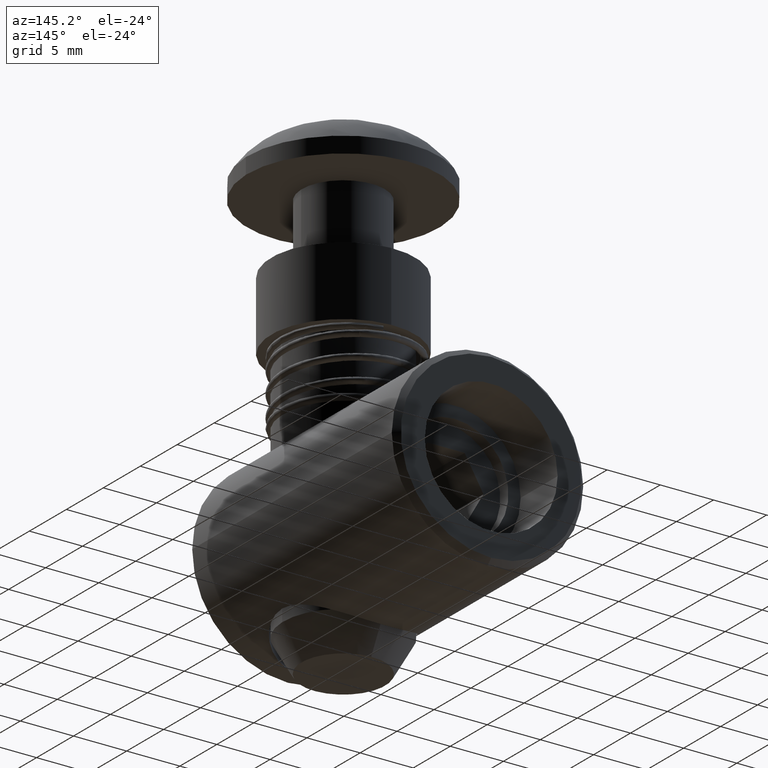
[diagram: clean part render]
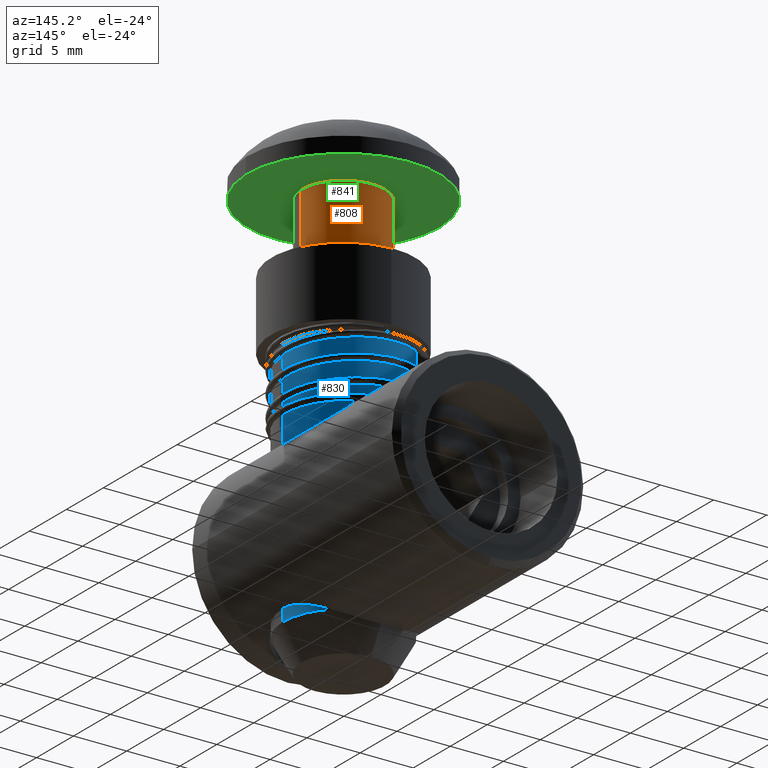
[diagram: same view with three faces highlighted in distinct colors, each labeled with its STEP entity id]
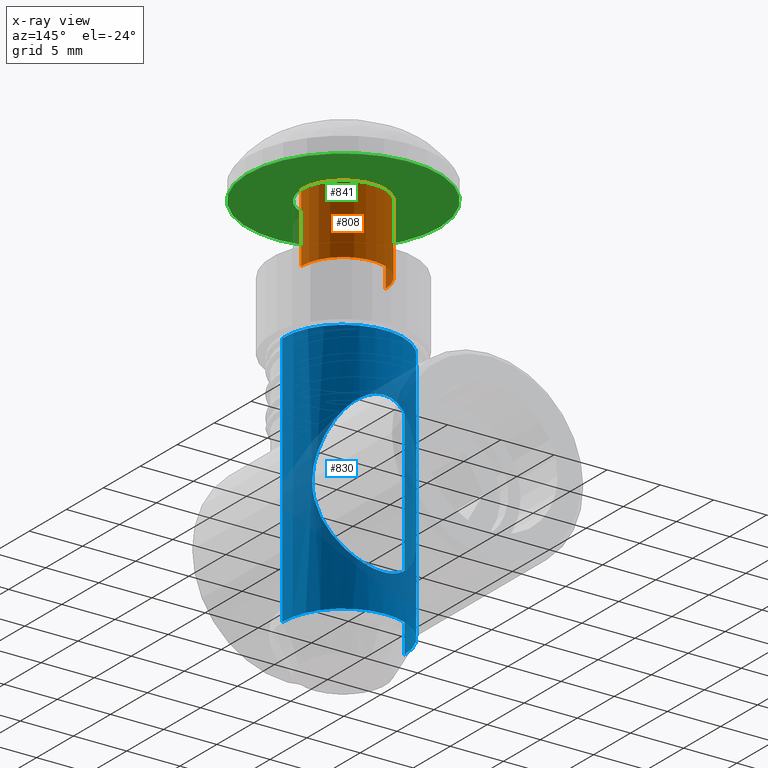
[diagram: x-ray of the same camera — body ghosted, the three highlighted faces saturated]
A machine part, auxiliary view with three faces highlighted in distinct colors.
The next image is the same camera in x-ray (body ghosted, the three faces saturated) — at least one of them is partly hidden behind the body in this view.
Their STEP definitions:

[orange] entity #808 — the highlighted cylindrical surface (partial cylindrical patch) has radius 3.9 mm, axis along (-0, 0, -1).
#9 = EDGE_CURVE ( 'NONE', #2917, #1492, #884, .T. ) ;
#10 = EDGE_CURVE ( 'NONE', #1492, #1493, #883, .T. ) ;
#11 = EDGE_CURVE ( 'NONE', #1496, #1493, #887, .T. ) ;
#12 = EDGE_CURVE ( 'NONE', #2917, #1496, #886, .T. ) ;
#808 = ADVANCED_FACE ( 'NONE', ( #1263 ), #1264, .T. ) ;
#883 = LINE ( 'NONE', #995, #885 ) ;
#884 = CIRCLE ( 'NONE', #1516, 3.899999999999999900 ) ;
#885 = VECTOR ( 'NONE', #996, 1000.000000000000000 ) ;
#886 = LINE ( 'NONE', #1000, #888 ) ;
#887 = CIRCLE ( 'NONE', #1517, 3.899999999999999900 ) ;
#888 = VECTOR ( 'NONE', #1001, 1000.000000000000000 ) ;
#992 = CARTESIAN_POINT ( 'NONE',  ( 0.0000000000000000000, -5.542828134810192100E-040, -40.00000000000000000 ) ) ;
#993 = DIRECTION ( 'NONE',  ( 0.0000000000000000000, -8.896017825522089600E-016, 1.000000000000000000 ) ) ;
#994 = DIRECTION ( 'NONE',  ( 0.0000000000000000000, -1.000000000000000000, -1.779203565104417500E-015 ) ) ;
#995 = CARTESIAN_POINT ( 'NONE',  ( 4.776122516674677300E-016, 3.899999999999999900, -39.99999999999999300 ) ) ;
#996 = DIRECTION ( 'NONE',  ( 0.0000000000000000000, -8.896017825522089600E-016, 1.000000000000000000 ) ) ;
#997 = CARTESIAN_POINT ( 'NONE',  ( 0.0000000000000000000, -5.782411586589357200E-015, -33.50000000000000000 ) ) ;
#998 = DIRECTION ( 'NONE',  ( 0.0000000000000000000, -8.896017825522089600E-016, 1.000000000000000000 ) ) ;
#999 = DIRECTION ( 'NONE',  ( 0.0000000000000000000, -1.000000000000000000, -1.779203565104417500E-015 ) ) ;
#1000 = CARTESIAN_POINT ( 'NONE',  ( 0.0000000000000000000, -3.899999999999999900, -40.00000000000000700 ) ) ;
#1001 = DIRECTION ( 'NONE',  ( 0.0000000000000000000, -8.896017825522089600E-016, 1.000000000000000000 ) ) ;
#1263 = FACE_OUTER_BOUND ( 'NONE', #1456, .T. ) ;
#1264 = CYLINDRICAL_SURFACE ( 'NONE', #2812, 3.899999999999999900 ) ;
#1383 = ORIENTED_EDGE ( 'NONE', *, *, #10, .T. ) ;
#1384 = ORIENTED_EDGE ( 'NONE', *, *, #9, .T. ) ;
#1400 = ORIENTED_EDGE ( 'NONE', *, *, #12, .F. ) ;
#1423 = ORIENTED_EDGE ( 'NONE', *, *, #11, .F. ) ;
#1456 = EDGE_LOOP ( 'NONE', ( #1384, #1383, #1423, #1400 ) ) ;
#1492 = VERTEX_POINT ( 'NONE', #2144 ) ;
#1493 = VERTEX_POINT ( 'NONE', #2145 ) ;
#1496 = VERTEX_POINT ( 'NONE', #2148 ) ;
#1516 = AXIS2_PLACEMENT_3D ( 'NONE', #992, #993, #994 ) ;
#1517 = AXIS2_PLACEMENT_3D ( 'NONE', #997, #998, #999 ) ;
#1875 = CARTESIAN_POINT ( 'NONE',  ( 0.0000000000000000000, 0.0000000000000000000, -40.00000000000000000 ) ) ;
#1876 = DIRECTION ( 'NONE',  ( 0.0000000000000000000, -8.896017825522089600E-016, 1.000000000000000000 ) ) ;
#1877 = DIRECTION ( 'NONE',  ( 0.0000000000000000000, -1.000000000000000000, -1.779203565104417500E-015 ) ) ;
#2144 = CARTESIAN_POINT ( 'NONE',  ( 4.776122516674680200E-016, 3.899999999999999900, -40.00000000000000000 ) ) ;
#2145 = CARTESIAN_POINT ( 'NONE',  ( 4.776122516674677300E-016, 3.899999999999994100, -33.49999999999999300 ) ) ;
#2148 = CARTESIAN_POINT ( 'NONE',  ( 0.0000000000000000000, -3.900000000000005200, -33.50000000000000700 ) ) ;
#2327 = CARTESIAN_POINT ( 'NONE',  ( 0.0000000000000000000, -3.899999999999999900, -40.00000000000000700 ) ) ;
#2812 = AXIS2_PLACEMENT_3D ( 'NONE', #1875, #1876, #1877 ) ;
#2917 = VERTEX_POINT ( 'NONE', #2327 ) ;

[blue] entity #830 — the highlighted cylindrical surface (partial cylindrical patch) has radius 5.65 mm, axis along (-0, 0, -1).
#19 = EDGE_CURVE ( 'NONE', #1536, #1535, #1433, .T. ) ;
#22 = EDGE_CURVE ( 'NONE', #1535, #1536, #1436, .T. ) ;
#23 = EDGE_CURVE ( 'NONE', #1529, #1531, #903, .T. ) ;
#26 = EDGE_CURVE ( 'NONE', #1526, #1527, #906, .T. ) ;
#28 = EDGE_CURVE ( 'NONE', #1529, #2905, #907, .T. ) ;
#29 = EDGE_CURVE ( 'NONE', #1531, #1527, #910, .T. ) ;
#38 = EDGE_CURVE ( 'NONE', #2905, #1526, #918, .T. ) ;
#830 = ADVANCED_FACE ( 'NONE', ( #1947, #1948 ), #1949, .T. ) ;
#903 = CIRCLE ( 'NONE', #1521, 5.649999999999999500 ) ;
#906 = CIRCLE ( 'NONE', #1523, 5.649999999999998600 ) ;
#907 = LINE ( 'NONE', #1131, #909 ) ;
#909 = VECTOR ( 'NONE', #1132, 1000.000000000000000 ) ;
#910 = LINE ( 'NONE', #1133, #911 ) ;
#911 = VECTOR ( 'NONE', #1134, 1000.000000000000000 ) ;
#918 = CIRCLE ( 'NONE', #3127, 5.649999999999998600 ) ;
#1016 = CARTESIAN_POINT ( 'NONE',  ( 2.961595553952068200, 4.811595553952067000, -14.00000000000000000 ) ) ;
#1017 = CARTESIAN_POINT ( 'NONE',  ( 2.961595553952068600, 4.811595553952067000, -13.57299345797078300 ) ) ;
#1018 = CARTESIAN_POINT ( 'NONE',  ( 2.997142720252163000, 4.790178999840883900, -13.15152765621599200 ) ) ;
#1019 = CARTESIAN_POINT ( 'NONE',  ( 3.096222318175060600, 4.726251388833850900, -12.52677397019109600 ) ) ;
#1020 = CARTESIAN_POINT ( 'NONE',  ( 3.136806548275296700, 4.699597401254456100, -12.31975918867283700 ) ) ;
#1021 = CARTESIAN_POINT ( 'NONE',  ( 3.231299053865970700, 4.635135109105808800, -11.90803729403234700 ) ) ;
#1022 = CARTESIAN_POINT ( 'NONE',  ( 3.285456279482796400, 4.597130787598807400, -11.70257226377728400 ) ) ;
#1023 = CARTESIAN_POINT ( 'NONE',  ( 3.462060352552689400, 4.467435045527793100, -11.09905063211158400 ) ) ;
#1024 = CARTESIAN_POINT ( 'NONE',  ( 3.598793229557414500, 4.360038424798156100, -10.71125160011082800 ) ) ;
#1025 = CARTESIAN_POINT ( 'NONE',  ( 3.893504253076139700, 4.099008710176486000, -9.959898250783748400 ) ) ;
#1026 = CARTESIAN_POINT ( 'NONE',  ( 4.051580190083130100, 3.945490218921813100, -9.596341147894870400 ) ) ;
#1027 = CARTESIAN_POINT ( 'NONE',  ( 4.377052309168864700, 3.581006588528047100, -8.892845421627233900 ) ) ;
#1028 = CARTESIAN_POINT ( 'NONE',  ( 4.543421484188627300, 3.370983763048713800, -8.555476015043618400 ) ) ;
#1029 = CARTESIAN_POINT ( 'NONE',  ( 4.783853616867359500, 3.009679742234423500, -8.085401507374948300 ) ) ;
#1030 = CARTESIAN_POINT ( 'NONE',  ( 4.862738604434448500, 2.881189409971274300, -7.934209947499080200 ) ) ;
#1031 = CARTESIAN_POINT ( 'NONE',  ( 5.016199920489348200, 2.604845006688572400, -7.644397302777438300 ) ) ;
#1032 = CARTESIAN_POINT ( 'NONE',  ( 5.090965808080320600, 2.456409822999941400, -7.505452612885776800 ) ) ;
#1033 = CARTESIAN_POINT ( 'NONE',  ( 5.230512854392106400, 2.143272581267367600, -7.248990182449590600 ) ) ;
#1034 = CARTESIAN_POINT ( 'NONE',  ( 5.295732359979550300, 1.977927992112557400, -7.130638550942740600 ) ) ;
#1035 = CARTESIAN_POINT ( 'NONE',  ( 5.414174662451125100, 1.625943755173973500, -6.917389229180723300 ) ) ;
#1036 = CARTESIAN_POINT ( 'NONE',  ( 5.467715969055869400, 1.437510763749879200, -6.821936342586424100 ) ) ;
#1037 = CARTESIAN_POINT ( 'NONE',  ( 5.555539670495345900, 1.048014352820518400, -6.666123004197199700 ) ) ;
#1038 = CARTESIAN_POINT ( 'NONE',  ( 5.590290272015355600, 0.8461203779732382500, -6.604908106642250600 ) ) ;
#1039 = CARTESIAN_POINT ( 'NONE',  ( 5.637914835761543800, 0.4256539957653157100, -6.521158396055735600 ) ) ;
#1040 = CARTESIAN_POINT ( 'NONE',  ( 5.650279333229625500, 0.2093871887656843500, -6.499510235541494700 ) ) ;
#1041 = CARTESIAN_POINT ( 'NONE',  ( 5.649710957974379600, -0.2241999769964501400, -6.500506787217527300 ) ) ;
#1042 = CARTESIAN_POINT ( 'NONE',  ( 5.637015855639352100, -0.4360075775476766600, -6.522736377706752200 ) ) ;
#1043 = CARTESIAN_POINT ( 'NONE',  ( 5.589491487180038300, -0.8506675491343933500, -6.606315818820237800 ) ) ;
#1044 = CARTESIAN_POINT ( 'NONE',  ( 5.554126853144023100, -1.055582440020999200, -6.668617054438343800 ) ) ;
#1045 = CARTESIAN_POINT ( 'NONE',  ( 5.465485867587468700, -1.446044127852916400, -6.825905939850065900 ) ) ;
#1046 = CARTESIAN_POINT ( 'NONE',  ( 5.412735195149362100, -1.630735581008902600, -6.919964069783057800 ) ) ;
#1047 = CARTESIAN_POINT ( 'NONE',  ( 5.293942756250958200, -1.982718064051229600, -7.133877952108221600 ) ) ;
#1048 = CARTESIAN_POINT ( 'NONE',  ( 5.227478910596945000, -2.150635851525980700, -7.254521756849417400 ) ) ;
#1049 = CARTESIAN_POINT ( 'NONE',  ( 5.017923522683738600, -2.619164910217751000, -7.639782791013683300 ) ) ;
#1050 = CARTESIAN_POINT ( 'NONE',  ( 4.863463728486417300, -2.890286902401052200, -7.929680959516752600 ) ) ;
#1051 = CARTESIAN_POINT ( 'NONE',  ( 4.541085093384189100, -3.374253101226699000, -8.560117549295633000 ) ) ;
#1052 = CARTESIAN_POINT ( 'NONE',  ( 4.375412474941105000, -3.582855895821849900, -8.896377739688826800 ) ) ;
#1053 = CARTESIAN_POINT ( 'NONE',  ( 4.052952318350746100, -3.943940694441405300, -9.593387476250237400 ) ) ;
#1054 = CARTESIAN_POINT ( 'NONE',  ( 3.895008272447442200, -4.097636755852960300, -9.956179619690216100 ) ) ;
#1055 = CARTESIAN_POINT ( 'NONE',  ( 3.598559805660513300, -4.360284824462244300, -10.71173139691113900 ) ) ;
#1056 = CARTESIAN_POINT ( 'NONE',  ( 3.460165757375947200, -4.468854685819116500, -11.10520062619261600 ) ) ;
#1057 = CARTESIAN_POINT ( 'NONE',  ( 3.227042934659731400, -4.640000341524475000, -11.90251888261512600 ) ) ;
#1058 = CARTESIAN_POINT ( 'NONE',  ( 3.131216053990888900, -4.703642284774068600, -12.30914813438212000 ) ) ;
#1059 = CARTESIAN_POINT ( 'NONE',  ( 3.031474981557628700, -4.768042115602737500, -12.93357994724312500 ) ) ;
#1060 = CARTESIAN_POINT ( 'NONE',  ( 3.005577181772033600, -4.784290064652418900, -13.14414854261466200 ) ) ;
#1061 = CARTESIAN_POINT ( 'NONE',  ( 2.970558604431047000, -4.806111442316047400, -13.57062669565032900 ) ) ;
#1062 = CARTESIAN_POINT ( 'NONE',  ( 2.961595553952074900, -4.811595553952072300, -13.78668706657359700 ) ) ;
#1063 = CARTESIAN_POINT ( 'NONE',  ( 2.961595553952073100, -4.811595553952072300, -14.00000000000000000 ) ) ;
#1069 = CARTESIAN_POINT ( 'NONE',  ( 2.961595553952073100, -4.811595553952072300, -14.00000000000000000 ) ) ;
#1070 = CARTESIAN_POINT ( 'NONE',  ( 2.961595553952074000, -4.811595553952073200, -14.42662576578586800 ) ) ;
#1071 = CARTESIAN_POINT ( 'NONE',  ( 2.997078802006793600, -4.790216761668517600, -14.84772069900645000 ) ) ;
#1072 = CARTESIAN_POINT ( 'NONE',  ( 3.095989327412678600, -4.726403450494777800, -15.47193049212208400 ) ) ;
#1073 = CARTESIAN_POINT ( 'NONE',  ( 3.136505226320098800, -4.699797326167100700, -15.67876603055470500 ) ) ;
#1074 = CARTESIAN_POINT ( 'NONE',  ( 3.230842301969248300, -4.635452293097919200, -16.09013311924566000 ) ) ;
#1075 = CARTESIAN_POINT ( 'NONE',  ( 3.284913352810812100, -4.597516927993552800, -16.29542801124765100 ) ) ;
#1076 = CARTESIAN_POINT ( 'NONE',  ( 3.461256950923921000, -4.468050008038067000, -16.89849022646966100 ) ) ;
#1077 = CARTESIAN_POINT ( 'NONE',  ( 3.597800368187682500, -4.360844132901545900, -17.28600234678741600 ) ) ;
#1078 = CARTESIAN_POINT ( 'NONE',  ( 3.892132346448012600, -4.100296920776145300, -18.03681720771781400 ) ) ;
#1079 = CARTESIAN_POINT ( 'NONE',  ( 4.050018185721151900, -3.947069132747502300, -18.40012256091255700 ) ) ;
#1080 = CARTESIAN_POINT ( 'NONE',  ( 4.375131863581301200, -3.583325720561249600, -19.10316198030582400 ) ) ;
#1081 = CARTESIAN_POINT ( 'NONE',  ( 4.541374860744172200, -3.373699886898911400, -19.44041301103148100 ) ) ;
#1082 = CARTESIAN_POINT ( 'NONE',  ( 4.781660451024691800, -3.013151584184167000, -19.91036427643346900 ) ) ;
#1083 = CARTESIAN_POINT ( 'NONE',  ( 4.860505967569056700, -2.884938509347774200, -20.06152931948607000 ) ) ;
#1084 = CARTESIAN_POINT ( 'NONE',  ( 5.013915365086083000, -2.609222331509110300, -20.35133139717541100 ) ) ;
#1085 = CARTESIAN_POINT ( 'NONE',  ( 5.088688431768558100, -2.461104285276898700, -20.49032887671128100 ) ) ;
#1086 = CARTESIAN_POINT ( 'NONE',  ( 5.228307277706877100, -2.148624506166855400, -20.74698841905476600 ) ) ;
#1087 = CARTESIAN_POINT ( 'NONE',  ( 5.293583336326130400, -1.983638995538906400, -20.86547007926808600 ) ) ;
#1088 = CARTESIAN_POINT ( 'NONE',  ( 5.412199673729120700, -1.632465281388456400, -21.07907630959605800 ) ) ;
#1089 = CARTESIAN_POINT ( 'NONE',  ( 5.465876328589356300, -1.444448144834217900, -21.17478811582053700 ) ) ;
#1090 = CARTESIAN_POINT ( 'NONE',  ( 5.554081445131315900, -1.055657985995706700, -21.33130116402006100 ) ) ;
#1091 = CARTESIAN_POINT ( 'NONE',  ( 5.589056206897270200, -0.8541404205369591600, -21.39291826957504800 ) ) ;
#1092 = CARTESIAN_POINT ( 'NONE',  ( 5.637226013098755000, -0.4344974327825715800, -21.47763361641653600 ) ) ;
#1093 = CARTESIAN_POINT ( 'NONE',  ( 5.649927738117694900, -0.2185765540630030800, -21.49987330082980800 ) ) ;
#1094 = CARTESIAN_POINT ( 'NONE',  ( 5.650071639015492600, 0.2148246492621311800, -21.50012560707703500 ) ) ;
#1095 = CARTESIAN_POINT ( 'NONE',  ( 5.637686869573799200, 0.4273767464117052600, -21.47844037393497300 ) ) ;
#1096 = CARTESIAN_POINT ( 'NONE',  ( 5.590716268126220400, 0.8426480475543067800, -21.39584136551057700 ) ) ;
#1097 = CARTESIAN_POINT ( 'NONE',  ( 5.555610129722425400, 1.047822620125052500, -21.33400315121660600 ) ) ;
#1098 = CARTESIAN_POINT ( 'NONE',  ( 5.467315682952047100, 1.439164820187985600, -21.17735233189528500 ) ) ;
#1099 = CARTESIAN_POINT ( 'NONE',  ( 5.414696045982258200, 1.624248299006287600, -21.08354473799353500 ) ) ;
#1100 = CARTESIAN_POINT ( 'NONE',  ( 5.296109300899637200, 1.976952725819479700, -20.87004483331439200 ) ) ;
#1101 = CARTESIAN_POINT ( 'NONE',  ( 5.229701932557940600, 2.145250546396932500, -20.74953205622952600 ) ) ;
#1102 = CARTESIAN_POINT ( 'NONE',  ( 5.020203236218734800, 2.614878258719772800, -20.36447310648037500 ) ) ;
#1103 = CARTESIAN_POINT ( 'NONE',  ( 4.865701397634720300, 2.886563403950423100, -20.07458412399521600 ) ) ;
#1104 = CARTESIAN_POINT ( 'NONE',  ( 4.543160284466200200, 3.371497146019749400, -19.44405002912209600 ) ) ;
#1105 = CARTESIAN_POINT ( 'NONE',  ( 4.377306732311523300, 3.580566878120747400, -19.10755956162699600 ) ) ;
#1106 = CARTESIAN_POINT ( 'NONE',  ( 4.054510151429830100, 3.942362341209593200, -18.41013537262980300 ) ) ;
#1107 = CARTESIAN_POINT ( 'NONE',  ( 3.896383663924169100, 4.096343299500803800, -18.04710859154797800 ) ) ;
#1108 = CARTESIAN_POINT ( 'NONE',  ( 3.599564876072679700, 4.359468635832137700, -17.29104568759732200 ) ) ;
#1109 = CARTESIAN_POINT ( 'NONE',  ( 3.460968086250796500, 4.468240973733986500, -16.89726003754046600 ) ) ;
#1110 = CARTESIAN_POINT ( 'NONE',  ( 3.227488754412501500, 4.639697601519152700, -16.09928781470111000 ) ) ;
#1111 = CARTESIAN_POINT ( 'NONE',  ( 3.131505819331684900, 4.703451647649100800, -15.69231992758884600 ) ) ;
#1112 = CARTESIAN_POINT ( 'NONE',  ( 3.031597127836459300, 4.767965014454700800, -15.06735707108733600 ) ) ;
#1113 = CARTESIAN_POINT ( 'NONE',  ( 3.005654639331991200, 4.784241559595393800, -14.85660756638487500 ) ) ;
#1114 = CARTESIAN_POINT ( 'NONE',  ( 2.970574902440726200, 4.806101524155201900, -14.42975850943962100 ) ) ;
#1115 = CARTESIAN_POINT ( 'NONE',  ( 2.961595553952067700, 4.811595553952066100, -14.21350322043603700 ) ) ;
#1116 = CARTESIAN_POINT ( 'NONE',  ( 2.961595553952068200, 4.811595553952067000, -14.00000000000000000 ) ) ;
#1117 = CARTESIAN_POINT ( 'NONE',  ( 0.0000000000000000000, -2.184816563463291800E-040, -27.00000000000000000 ) ) ;
#1118 = DIRECTION ( 'NONE',  ( 0.0000000000000000000, -3.070307037127092200E-016, 1.000000000000000000 ) ) ;
#1119 = DIRECTION ( 'NONE',  ( 0.0000000000000000000, -1.000000000000000000, 0.0000000000000000000 ) ) ;
#1125 = CARTESIAN_POINT ( 'NONE',  ( 0.0000000000000000000, 0.0000000000000000000, -2.999999999999999100 ) ) ;
#1126 = DIRECTION ( 'NONE',  ( 0.0000000000000000000, 0.0000000000000000000, 1.000000000000000000 ) ) ;
#1127 = DIRECTION ( 'NONE',  ( 1.000000000000000000, 0.0000000000000000000, -1.535153518563546600E-016 ) ) ;
#1131 = CARTESIAN_POINT ( 'NONE',  ( 0.0000000000000000000, -5.649999999999999500, -27.00000000000000000 ) ) ;
#1132 = DIRECTION ( 'NONE',  ( 0.0000000000000000000, -3.070307037127092200E-016, 1.000000000000000000 ) ) ;
#1133 = CARTESIAN_POINT ( 'NONE',  ( 6.919254415182545300E-016, 5.649999999999999500, -27.00000000000000000 ) ) ;
#1134 = DIRECTION ( 'NONE',  ( 0.0000000000000000000, -3.070307037127092200E-016, 1.000000000000000000 ) ) ;
#1168 = CARTESIAN_POINT ( 'NONE',  ( 0.0000000000000000000, 0.0000000000000000000, -2.999999999999999100 ) ) ;
#1169 = DIRECTION ( 'NONE',  ( 0.0000000000000000000, 0.0000000000000000000, 1.000000000000000000 ) ) ;
#1170 = DIRECTION ( 'NONE',  ( 1.000000000000000000, 0.0000000000000000000, -1.535153518563546600E-016 ) ) ;
#1397 = ORIENTED_EDGE ( 'NONE', *, *, #23, .T. ) ;
#1420 = ORIENTED_EDGE ( 'NONE', *, *, #19, .F. ) ;
#1422 = ORIENTED_EDGE ( 'NONE', *, *, #22, .F. ) ;
#1433 = B_SPLINE_CURVE_WITH_KNOTS ( 'NONE', 3,
 ( #1016, #1017, #1018, #1019, #1020, #1021, #1022, #1023, #1024, #1025, #1026, #1027, #1028, #1029, #1030, #1031, #1032, #1033, #1034, #1035, #1036, #1037, #1038, #1039, #1040, #1041, #1042, #1043, #1044, #1045, #1046, #1047, #1048, #1049, #1050, #1051, #1052, #1053, #1054, #1055, #1056, #1057, #1058, #1059, #1060, #1061, #1062, #1063 ),
 .UNSPECIFIED., .F., .F.,
 ( 4, 2, 2, 2, 2, 2, 2, 2, 2, 2, 2, 2, 2, 2, 2, 2, 2, 2, 2, 2, 2, 2, 2, 4 ),
 ( 0.01021815512896254500, 0.01149565521469545300, 0.01213440525756190700, 0.01277315530042836100, 0.01405065538616126500, 0.01532815547189417300, 0.01660565555762708000, 0.01724440560049353400, 0.01788315564335998800, 0.01852190568622644500, 0.01916065572909289900, 0.01979940577195935700, 0.02043815581482581100, 0.02107690585769226800, 0.02171565590055872500, 0.02235440594342517900, 0.02299315598629163300, 0.02427065607202454800, 0.02554815615775746200, 0.02682565624349037400, 0.02810315632922328100, 0.02938065641495619600, 0.03001940645782265300, 0.03065815650068910700 ),
 .UNSPECIFIED. ) ;
#1436 = B_SPLINE_CURVE_WITH_KNOTS ( 'NONE', 3,
 ( #1069, #1070, #1071, #1072, #1073, #1074, #1075, #1076, #1077, #1078, #1079, #1080, #1081, #1082, #1083, #1084, #1085, #1086, #1087, #1088, #1089, #1090, #1091, #1092, #1093, #1094, #1095, #1096, #1097, #1098, #1099, #1100, #1101, #1102, #1103, #1104, #1105, #1106, #1107, #1108, #1109, #1110, #1111, #1112, #1113, #1114, #1115, #1116 ),
 .UNSPECIFIED., .F., .F.,
 ( 4, 2, 2, 2, 2, 2, 2, 2, 2, 2, 2, 2, 2, 2, 2, 2, 2, 2, 2, 2, 2, 2, 2, 4 ),
 ( 0.03065815650068910700, 0.03193565628378440500, 0.03257440617533205500, 0.03321315606687970400, 0.03449065584997500900, 0.03576815563307031400, 0.03704565541616561300, 0.03768440530771326200, 0.03832315519926091100, 0.03896190509080856000, 0.03960065498235620200, 0.04023940487390385200, 0.04087815476545149400, 0.04151690465699914300, 0.04215565454854679200, 0.04279440444009443400, 0.04343315433164208300, 0.04471065411473737500, 0.04598815389783265900, 0.04726565368092795100, 0.04854315346402323500, 0.04982065324711852600, 0.05045940313866616900, 0.05109815303021381100 ),
 .UNSPECIFIED. ) ;
#1453 = EDGE_LOOP ( 'NONE', ( #1397, #1485, #1484, #1483, #1482 ) ) ;
#1454 = EDGE_LOOP ( 'NONE', ( #1420, #1422 ) ) ;
#1482 = ORIENTED_EDGE ( 'NONE', *, *, #28, .F. ) ;
#1483 = ORIENTED_EDGE ( 'NONE', *, *, #38, .F. ) ;
#1484 = ORIENTED_EDGE ( 'NONE', *, *, #26, .F. ) ;
#1485 = ORIENTED_EDGE ( 'NONE', *, *, #29, .T. ) ;
#1521 = AXIS2_PLACEMENT_3D ( 'NONE', #1117, #1118, #1119 ) ;
#1523 = AXIS2_PLACEMENT_3D ( 'NONE', #1125, #1126, #1127 ) ;
#1526 = VERTEX_POINT ( 'NONE', #2292 ) ;
#1527 = VERTEX_POINT ( 'NONE', #2293 ) ;
#1529 = VERTEX_POINT ( 'NONE', #2295 ) ;
#1531 = VERTEX_POINT ( 'NONE', #2297 ) ;
#1535 = VERTEX_POINT ( 'NONE', #2301 ) ;
#1536 = VERTEX_POINT ( 'NONE', #2302 ) ;
#1947 = FACE_BOUND ( 'NONE', #1454, .T. ) ;
#1948 = FACE_OUTER_BOUND ( 'NONE', #1453, .T. ) ;
#1949 = CYLINDRICAL_SURFACE ( 'NONE', #2834, 5.649999999999999500 ) ;
#2015 = CARTESIAN_POINT ( 'NONE',  ( 0.0000000000000000000, 0.0000000000000000000, -27.00000000000000000 ) ) ;
#2016 = DIRECTION ( 'NONE',  ( 0.0000000000000000000, -3.070307037127092200E-016, 1.000000000000000000 ) ) ;
#2017 = DIRECTION ( 'NONE',  ( 0.0000000000000000000, -1.000000000000000000, 0.0000000000000000000 ) ) ;
#2292 = CARTESIAN_POINT ( 'NONE',  ( 5.649999999999998600, 6.919254415182544400E-016, -2.999999999999999100 ) ) ;
#2293 = CARTESIAN_POINT ( 'NONE',  ( 6.919254415182550300E-016, 5.649999999999998600, -2.999999999999999100 ) ) ;
#2295 = CARTESIAN_POINT ( 'NONE',  ( 0.0000000000000000000, -5.649999999999999500, -27.00000000000000000 ) ) ;
#2297 = CARTESIAN_POINT ( 'NONE',  ( 6.919254415182550300E-016, 5.649999999999999500, -27.00000000000000000 ) ) ;
#2301 = CARTESIAN_POINT ( 'NONE',  ( 2.961595553952073100, -4.811595553952072300, -14.00000000000000000 ) ) ;
#2302 = CARTESIAN_POINT ( 'NONE',  ( 2.961595553952068200, 4.811595553952067000, -14.00000000000000000 ) ) ;
#2315 = CARTESIAN_POINT ( 'NONE',  ( 0.0000000000000000000, -5.649999999999999500, -2.999999999999999100 ) ) ;
#2834 = AXIS2_PLACEMENT_3D ( 'NONE', #2015, #2016, #2017 ) ;
#2905 = VERTEX_POINT ( 'NONE', #2315 ) ;
#3127 = AXIS2_PLACEMENT_3D ( 'NONE', #1168, #1169, #1170 ) ;

[green] entity #841 — the highlighted planar face has unit normal (0, 0, 1).
#6 = EDGE_CURVE ( 'NONE', #1487, #1495, #880, .T. ) ;
#9 = EDGE_CURVE ( 'NONE', #2917, #1492, #884, .T. ) ;
#841 = ADVANCED_FACE ( 'NONE', ( #1969, #1970 ), #2051, .F. ) ;
#880 = CIRCLE ( 'NONE', #1514, 9.000000000000001800 ) ;
#884 = CIRCLE ( 'NONE', #1516, 3.899999999999999900 ) ;
#984 = CARTESIAN_POINT ( 'NONE',  ( 0.0000000000000000000, -5.782411586589361600E-016, -40.00000000000000000 ) ) ;
#985 = DIRECTION ( 'NONE',  ( 0.0000000000000000000, -3.854941057726237600E-016, 1.000000000000000000 ) ) ;
#986 = DIRECTION ( 'NONE',  ( 0.0000000000000000000, -1.000000000000000000, -7.709882115452474200E-016 ) ) ;
#992 = CARTESIAN_POINT ( 'NONE',  ( 0.0000000000000000000, -5.542828134810192100E-040, -40.00000000000000000 ) ) ;
#993 = DIRECTION ( 'NONE',  ( 0.0000000000000000000, -8.896017825522089600E-016, 1.000000000000000000 ) ) ;
#994 = DIRECTION ( 'NONE',  ( 0.0000000000000000000, -1.000000000000000000, -1.779203565104417500E-015 ) ) ;
#1293 = EDGE_LOOP ( 'NONE', ( #1382, #1322 ) ) ;
#1294 = EDGE_LOOP ( 'NONE', ( #3095, #3096 ) ) ;
#1322 = ORIENTED_EDGE ( 'NONE', *, *, #3185, .T. ) ;
#1382 = ORIENTED_EDGE ( 'NONE', *, *, #6, .T. ) ;
#1487 = VERTEX_POINT ( 'NONE', #2139 ) ;
#1492 = VERTEX_POINT ( 'NONE', #2144 ) ;
#1495 = VERTEX_POINT ( 'NONE', #2147 ) ;
#1514 = AXIS2_PLACEMENT_3D ( 'NONE', #984, #985, #986 ) ;
#1516 = AXIS2_PLACEMENT_3D ( 'NONE', #992, #993, #994 ) ;
#1969 = FACE_BOUND ( 'NONE', #1294, .T. ) ;
#1970 = FACE_OUTER_BOUND ( 'NONE', #1293, .T. ) ;
#2051 = PLANE ( 'NONE',  #2845 ) ;
#2052 = CARTESIAN_POINT ( 'NONE',  ( 9.108000000000000500, -9.108000000000000500, -40.00000000000000000 ) ) ;
#2053 = DIRECTION ( 'NONE',  ( 0.0000000000000000000, 0.0000000000000000000, -1.000000000000000000 ) ) ;
#2054 = DIRECTION ( 'NONE',  ( -1.000000000000000000, 0.0000000000000000000, 0.0000000000000000000 ) ) ;
#2139 = CARTESIAN_POINT ( 'NONE',  ( 0.0000000000000000000, -9.000000000000001800, -40.00000000000000700 ) ) ;
#2144 = CARTESIAN_POINT ( 'NONE',  ( 4.776122516674680200E-016, 3.899999999999999900, -40.00000000000000000 ) ) ;
#2147 = CARTESIAN_POINT ( 'NONE',  ( 1.102182119232617900E-015, 9.000000000000001800, -39.99999999999999300 ) ) ;
#2240 = CIRCLE ( 'NONE', #2885, 3.899999999999999900 ) ;
#2246 = CIRCLE ( 'NONE', #2891, 9.000000000000001800 ) ;
#2327 = CARTESIAN_POINT ( 'NONE',  ( 0.0000000000000000000, -3.899999999999999900, -40.00000000000000700 ) ) ;
#2591 = CARTESIAN_POINT ( 'NONE',  ( 0.0000000000000000000, -5.542828134810192100E-040, -40.00000000000000000 ) ) ;
#2592 = DIRECTION ( 'NONE',  ( 0.0000000000000000000, -8.896017825522089600E-016, 1.000000000000000000 ) ) ;
#2593 = DIRECTION ( 'NONE',  ( 0.0000000000000000000, -1.000000000000000000, -1.779203565104417500E-015 ) ) ;
#2609 = CARTESIAN_POINT ( 'NONE',  ( 0.0000000000000000000, -5.782411586589361600E-016, -40.00000000000000000 ) ) ;
#2610 = DIRECTION ( 'NONE',  ( 0.0000000000000000000, -3.854941057726237600E-016, 1.000000000000000000 ) ) ;
#2611 = DIRECTION ( 'NONE',  ( 0.0000000000000000000, -1.000000000000000000, -7.709882115452474200E-016 ) ) ;
#2845 = AXIS2_PLACEMENT_3D ( 'NONE', #2052, #2053, #2054 ) ;
#2885 = AXIS2_PLACEMENT_3D ( 'NONE', #2591, #2592, #2593 ) ;
#2891 = AXIS2_PLACEMENT_3D ( 'NONE', #2609, #2610, #2611 ) ;
#2917 = VERTEX_POINT ( 'NONE', #2327 ) ;
#3095 = ORIENTED_EDGE ( 'NONE', *, *, #9, .F. ) ;
#3096 = ORIENTED_EDGE ( 'NONE', *, *, #3179, .F. ) ;
#3179 = EDGE_CURVE ( 'NONE', #1492, #2917, #2240, .T. ) ;
#3185 = EDGE_CURVE ( 'NONE', #1495, #1487, #2246, .T. ) ;